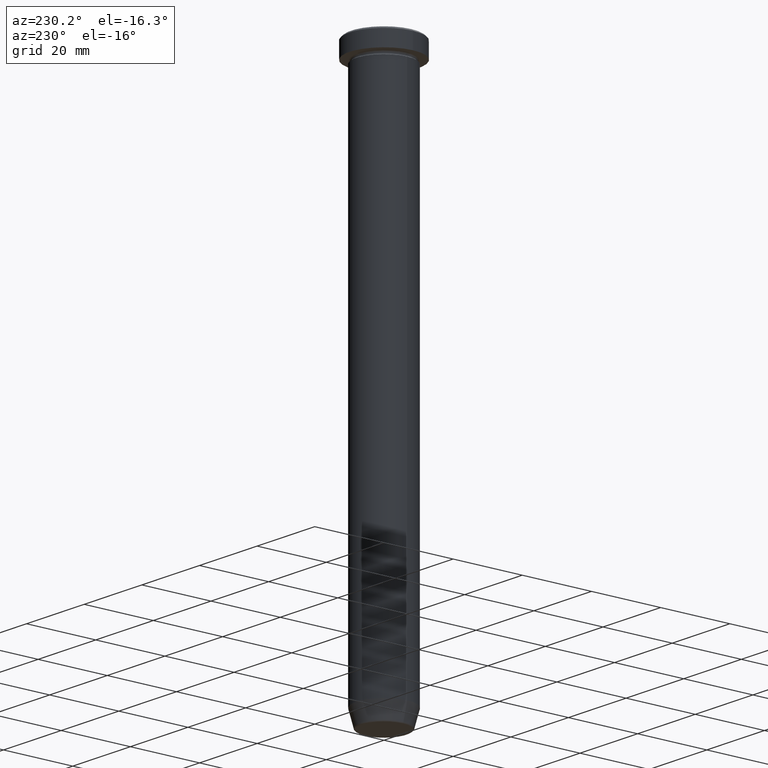
[diagram: clean part render]
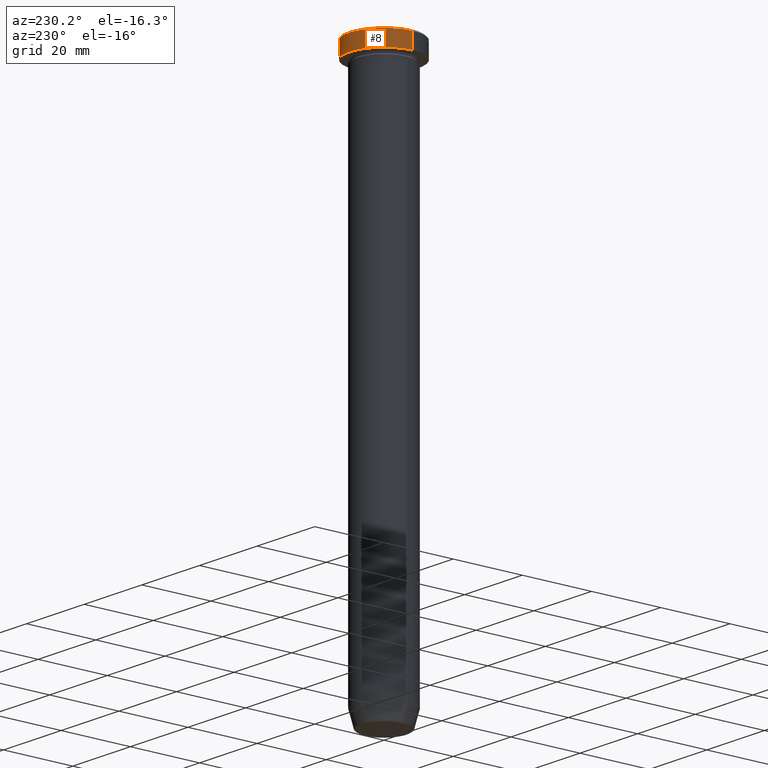
[diagram: same view with one face highlighted and labeled with its STEP entity id]
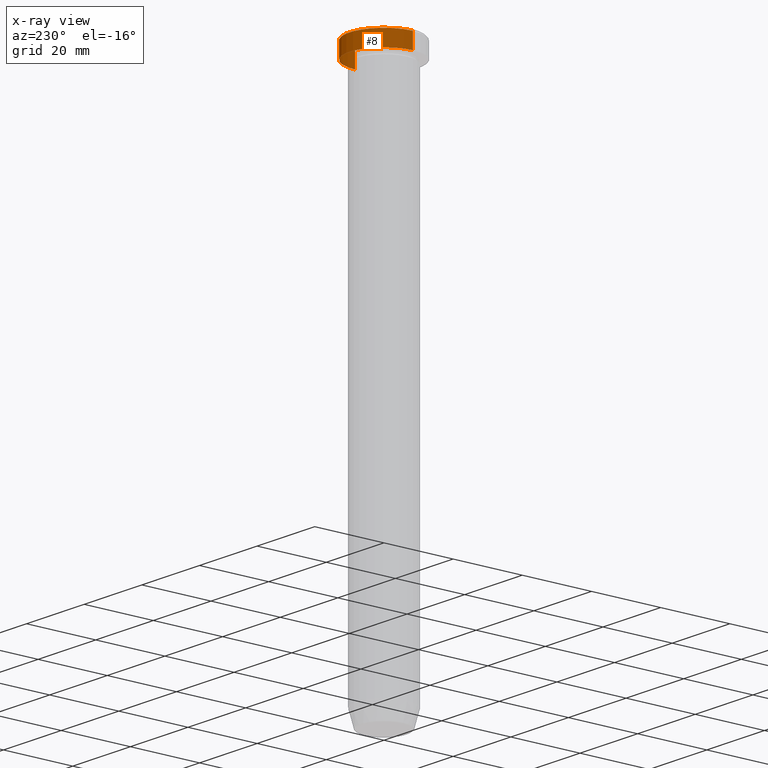
[diagram: x-ray of the same camera — body ghosted, the highlighted face saturated]
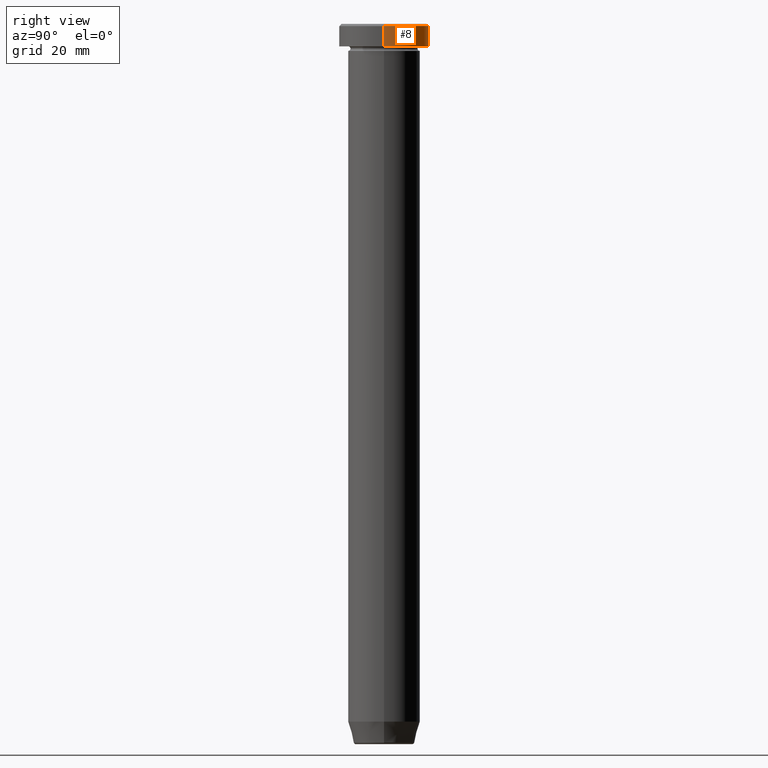
[diagram: same view with one face highlighted and labeled with its STEP entity id]
A machine part, auxiliary view. The second image highlights one B-rep face of the part: STEP entity #8.
The next image is the same camera in x-ray: the body ghosted, the highlighted face saturated — about 0% of this face is hidden behind the body in this view.
A second angle (right view) of the same face is appended — the face is thin or edge-on in the first view.
In plain terms, the highlighted cylindrical surface (partial cylindrical patch) has radius 10 mm, axis along (-0, -0, 1).
Its self-contained STEP definition (entity closure, byte-faithful):
#5 = VECTOR ( 'NONE', #362, 1000.000000000000000 ) ;
#8 = ADVANCED_FACE ( 'NONE', ( #161 ), #121, .T. ) ;
#21 = VERTEX_POINT ( 'NONE', #589 ) ;
#44 = EDGE_CURVE ( 'NONE', #21, #302, #428, .T. ) ;
#72 = CARTESIAN_POINT ( 'NONE',  ( 0.000000000000000000, 0.000000000000000000, 0.000000000000000000 ) ) ;
#86 = EDGE_LOOP ( 'NONE', ( #273, #504, #470, #445 ) ) ;
#119 = CIRCLE ( 'NONE', #309, 10.00000000000000000 ) ;
#121 = CYLINDRICAL_SURFACE ( 'NONE', #489, 10.00000000000000000 ) ;
#124 = DIRECTION ( 'NONE',  ( 1.000000000000000000, 0.000000000000000000, 0.000000000000000000 ) ) ;
#134 = EDGE_CURVE ( 'NONE', #21, #138, #282, .T. ) ;
#136 = DIRECTION ( 'NONE',  ( 0.000000000000000000, 0.000000000000000000, -1.000000000000000000 ) ) ;
#138 = VERTEX_POINT ( 'NONE', #289 ) ;
#145 = CARTESIAN_POINT ( 'NONE',  ( -10.00000000000000000, 1.224646799147353256E-15, 0.000000000000000000 ) ) ;
#161 = FACE_OUTER_BOUND ( 'NONE', #86, .T. ) ;
#168 = EDGE_CURVE ( 'NONE', #534, #138, #119, .T. ) ;
#186 = CARTESIAN_POINT ( 'NONE',  ( 10.00000000000000000, 0.000000000000000000, 0.000000000000000000 ) ) ;
#240 = DIRECTION ( 'NONE',  ( -0.000000000000000000, -0.000000000000000000, 1.000000000000000000 ) ) ;
#262 = DIRECTION ( 'NONE',  ( -0.000000000000000000, -0.000000000000000000, 1.000000000000000000 ) ) ;
#271 = DIRECTION ( 'NONE',  ( 1.000000000000000000, 0.000000000000000000, 0.000000000000000000 ) ) ;
#273 = ORIENTED_EDGE ( 'NONE', *, *, #44, .T. ) ;
#282 = LINE ( 'NONE', #186, #5 ) ;
#289 = CARTESIAN_POINT ( 'NONE',  ( 10.00000000000000000, 0.000000000000000000, -0.4999999999999987232 ) ) ;
#298 = AXIS2_PLACEMENT_3D ( 'NONE', #507, #240, #271 ) ;
#302 = VERTEX_POINT ( 'NONE', #446 ) ;
#309 = AXIS2_PLACEMENT_3D ( 'NONE', #413, #136, #512 ) ;
#330 = DIRECTION ( 'NONE',  ( -0.000000000000000000, -0.000000000000000000, 1.000000000000000000 ) ) ;
#362 = DIRECTION ( 'NONE',  ( -0.000000000000000000, -0.000000000000000000, 1.000000000000000000 ) ) ;
#413 = CARTESIAN_POINT ( 'NONE',  ( 0.000000000000000000, 0.000000000000000000, -0.4999999999999987232 ) ) ;
#419 = VECTOR ( 'NONE', #330, 1000.000000000000000 ) ;
#427 = CARTESIAN_POINT ( 'NONE',  ( -10.00000000000000000, 1.224646799147353256E-15, -0.4999999999999987232 ) ) ;
#428 = CIRCLE ( 'NONE', #298, 10.00000000000000000 ) ;
#445 = ORIENTED_EDGE ( 'NONE', *, *, #134, .F. ) ;
#446 = CARTESIAN_POINT ( 'NONE',  ( -10.00000000000000000, 1.224646799147353256E-15, -5.000000000000000000 ) ) ;
#470 = ORIENTED_EDGE ( 'NONE', *, *, #168, .T. ) ;
#489 = AXIS2_PLACEMENT_3D ( 'NONE', #72, #262, #124 ) ;
#504 = ORIENTED_EDGE ( 'NONE', *, *, #548, .T. ) ;
#507 = CARTESIAN_POINT ( 'NONE',  ( 0.000000000000000000, 0.000000000000000000, -5.000000000000000000 ) ) ;
#512 = DIRECTION ( 'NONE',  ( 1.000000000000000000, 0.000000000000000000, 0.000000000000000000 ) ) ;
#534 = VERTEX_POINT ( 'NONE', #427 ) ;
#548 = EDGE_CURVE ( 'NONE', #302, #534, #555, .T. ) ;
#555 = LINE ( 'NONE', #145, #419 ) ;
#589 = CARTESIAN_POINT ( 'NONE',  ( 10.00000000000000000, 0.000000000000000000, -5.000000000000000000 ) ) ;